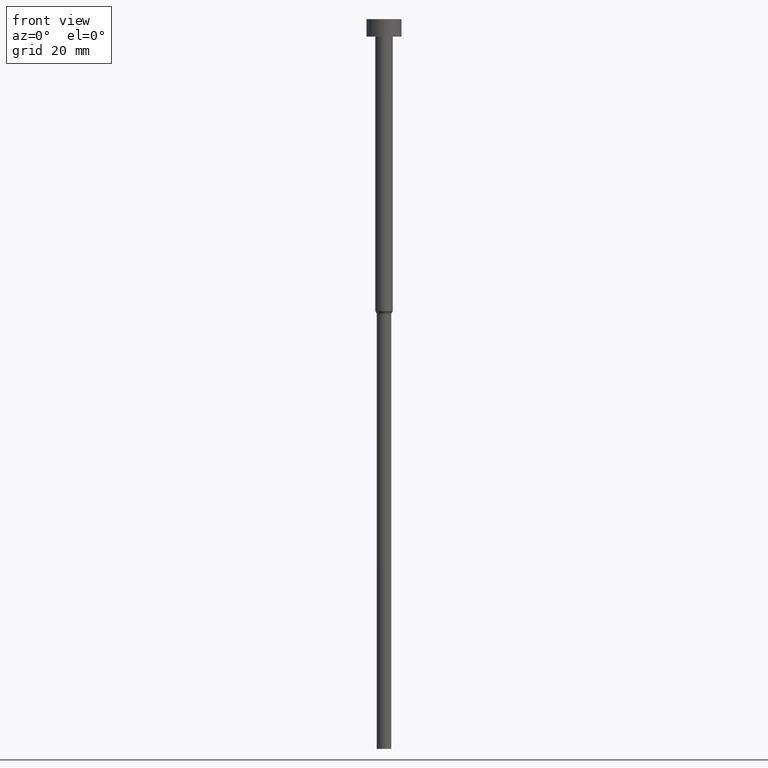
[diagram: clean part render]
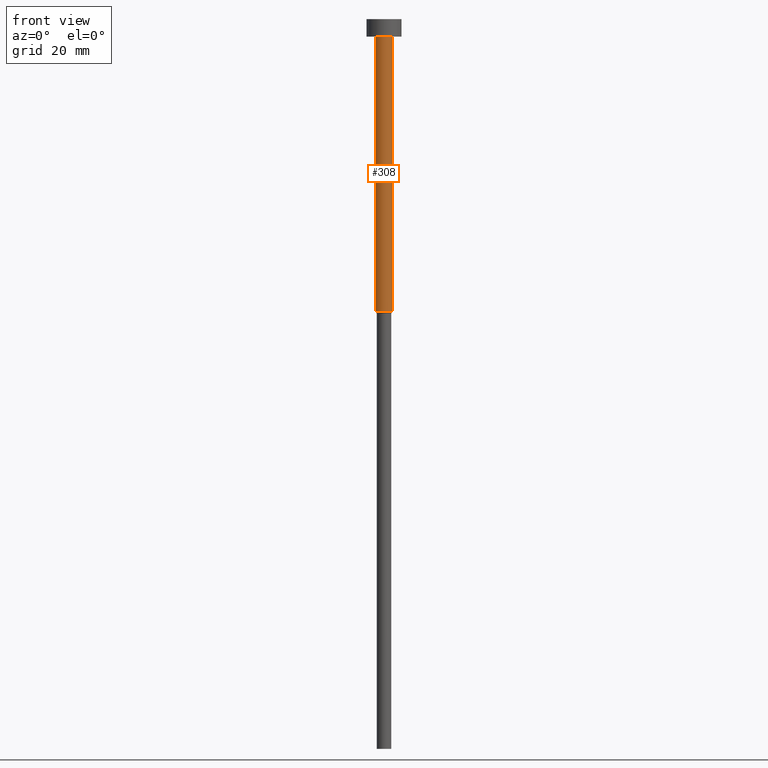
[diagram: same view with one face highlighted and labeled with its STEP entity id]
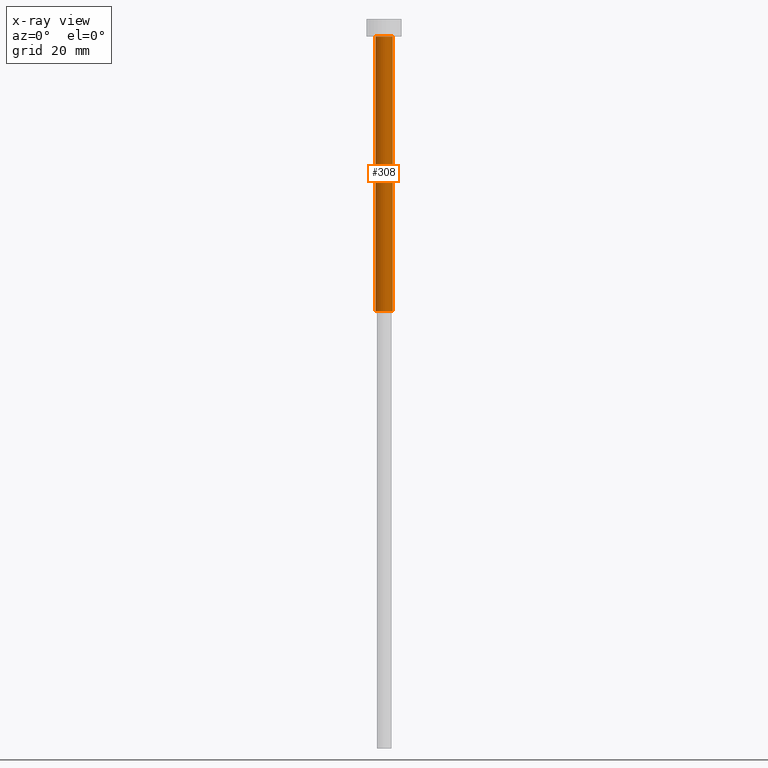
[diagram: x-ray of the same camera — body ghosted, the highlighted face saturated]
A machine part, front view. The second image highlights one B-rep face of the part: STEP entity #308.
The next image is the same camera in x-ray: the body ghosted, the highlighted face saturated — about 0% of this face is hidden behind the body in this view.
In plain terms, the highlighted cylindrical surface (edge-blend (fillet) strip) has radius 1.5 mm, axis along (-0, -0, 1).
Its self-contained STEP definition (entity closure, byte-faithful):
#10 = LINE ( 'NONE', #73, #133 ) ;
#16 = CIRCLE ( 'NONE', #101, 1.500000000000000000 ) ;
#17 = VECTOR ( 'NONE', #215, 1000.000000000000000 ) ;
#46 = CARTESIAN_POINT ( 'NONE',  ( 0.000000000000000000, 0.000000000000000000, -3.000000000000000888 ) ) ;
#54 = CARTESIAN_POINT ( 'NONE',  ( -1.500000000000000000, 1.836970198721029934E-16, -3.000000000000000888 ) ) ;
#58 = EDGE_LOOP ( 'NONE', ( #66, #243, #191, #166 ) ) ;
#66 = ORIENTED_EDGE ( 'NONE', *, *, #324, .F. ) ;
#71 = DIRECTION ( 'NONE',  ( -0.000000000000000000, -0.000000000000000000, 1.000000000000000000 ) ) ;
#73 = CARTESIAN_POINT ( 'NONE',  ( -1.500000000000000000, 1.836970198721029934E-16, 0.000000000000000000 ) ) ;
#74 = DIRECTION ( 'NONE',  ( -0.000000000000000000, -0.000000000000000000, 1.000000000000000000 ) ) ;
#82 = VERTEX_POINT ( 'NONE', #139 ) ;
#99 = CARTESIAN_POINT ( 'NONE',  ( 0.000000000000000000, 0.000000000000000000, -50.00000000000000000 ) ) ;
#101 = AXIS2_PLACEMENT_3D ( 'NONE', #99, #74, #207 ) ;
#118 = CARTESIAN_POINT ( 'NONE',  ( 1.500000000000000000, 0.000000000000000000, -3.000000000000000888 ) ) ;
#125 = CARTESIAN_POINT ( 'NONE',  ( 1.500000000000000000, 0.000000000000000000, 0.000000000000000000 ) ) ;
#133 = VECTOR ( 'NONE', #145, 1000.000000000000000 ) ;
#138 = DIRECTION ( 'NONE',  ( 1.000000000000000000, 0.000000000000000000, 0.000000000000000000 ) ) ;
#139 = CARTESIAN_POINT ( 'NONE',  ( -1.500000000000000000, 1.836970198721029934E-16, -50.00000000000000000 ) ) ;
#145 = DIRECTION ( 'NONE',  ( -0.000000000000000000, -0.000000000000000000, 1.000000000000000000 ) ) ;
#148 = AXIS2_PLACEMENT_3D ( 'NONE', #254, #71, #138 ) ;
#165 = CIRCLE ( 'NONE', #278, 1.500000000000000000 ) ;
#166 = ORIENTED_EDGE ( 'NONE', *, *, #226, .F. ) ;
#180 = VERTEX_POINT ( 'NONE', #118 ) ;
#191 = ORIENTED_EDGE ( 'NONE', *, *, #303, .T. ) ;
#202 = EDGE_CURVE ( 'NONE', #82, #353, #16, .T. ) ;
#207 = DIRECTION ( 'NONE',  ( 1.000000000000000000, 0.000000000000000000, 0.000000000000000000 ) ) ;
#215 = DIRECTION ( 'NONE',  ( -0.000000000000000000, -0.000000000000000000, 1.000000000000000000 ) ) ;
#226 = EDGE_CURVE ( 'NONE', #292, #180, #165, .T. ) ;
#243 = ORIENTED_EDGE ( 'NONE', *, *, #202, .T. ) ;
#254 = CARTESIAN_POINT ( 'NONE',  ( 0.000000000000000000, 0.000000000000000000, 0.000000000000000000 ) ) ;
#270 = CYLINDRICAL_SURFACE ( 'NONE', #148, 1.500000000000000000 ) ;
#278 = AXIS2_PLACEMENT_3D ( 'NONE', #46, #342, #347 ) ;
#292 = VERTEX_POINT ( 'NONE', #54 ) ;
#293 = FACE_OUTER_BOUND ( 'NONE', #58, .T. ) ;
#303 = EDGE_CURVE ( 'NONE', #353, #180, #320, .T. ) ;
#307 = CARTESIAN_POINT ( 'NONE',  ( 1.500000000000000000, 0.000000000000000000, -50.00000000000000000 ) ) ;
#308 = ADVANCED_FACE ( 'NONE', ( #293 ), #270, .T. ) ;
#320 = LINE ( 'NONE', #125, #17 ) ;
#324 = EDGE_CURVE ( 'NONE', #82, #292, #10, .T. ) ;
#342 = DIRECTION ( 'NONE',  ( -0.000000000000000000, -0.000000000000000000, 1.000000000000000000 ) ) ;
#347 = DIRECTION ( 'NONE',  ( 1.000000000000000000, 0.000000000000000000, 0.000000000000000000 ) ) ;
#353 = VERTEX_POINT ( 'NONE', #307 ) ;